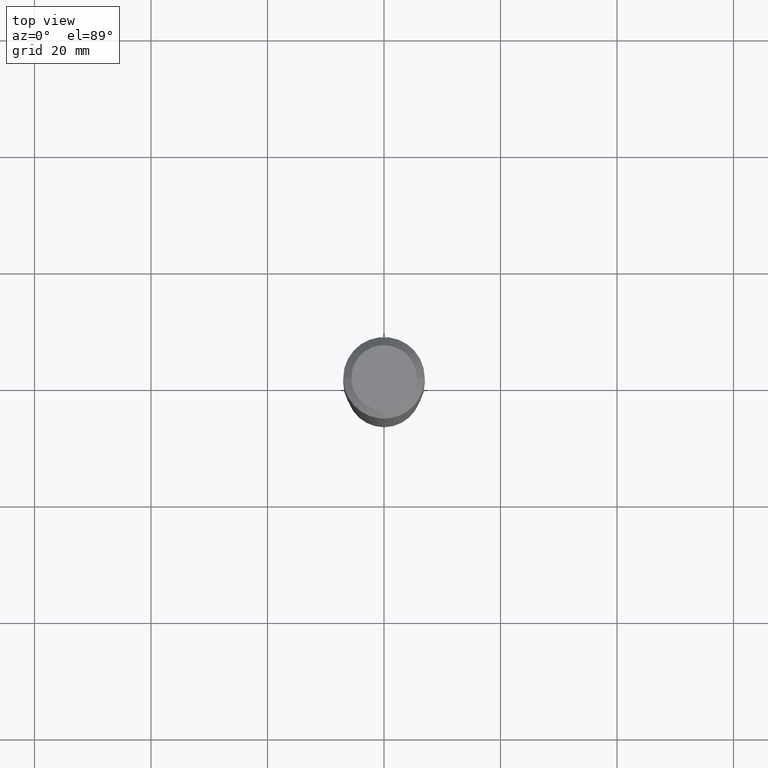
[diagram: clean part render]
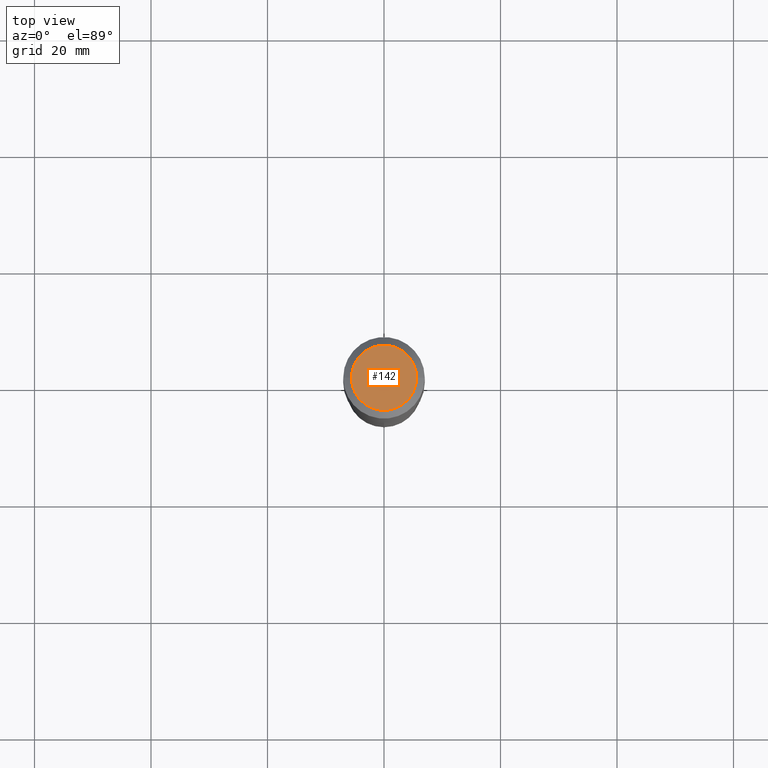
[diagram: same view with one face highlighted and labeled with its STEP entity id]
A machine part, top view. The second image highlights one B-rep face of the part: STEP entity #142.
In plain terms, the highlighted planar face has unit normal (0, -0, -1).
Its self-contained STEP definition (entity closure, byte-faithful):
#26 = CARTESIAN_POINT ( 'NONE',  ( -9.439721640706190018E-47, 1.347742071746724849E-32, 3.860086710912454339E-18 ) ) ;
#35 = VERTEX_POINT ( 'NONE', #57 ) ;
#49 = AXIS2_PLACEMENT_3D ( 'NONE', #79, #414, #416 ) ;
#57 = CARTESIAN_POINT ( 'NONE',  ( 0.2204800000000000093, -1.797903149065768707E-15, 3.860086710924123164E-18 ) ) ;
#64 = AXIS2_PLACEMENT_3D ( 'NONE', #138, #220, #475 ) ;
#66 = PLANE ( 'NONE',  #64 ) ;
#79 = CARTESIAN_POINT ( 'NONE',  ( -9.439721640706190018E-47, 1.347742071746724849E-32, 3.860086710912454339E-18 ) ) ;
#138 = CARTESIAN_POINT ( 'NONE',  ( -4.719860820353095009E-47, 6.738710358733624243E-33, 1.930043355456227170E-18 ) ) ;
#141 = EDGE_LOOP ( 'NONE', ( #286, #454 ) ) ;
#142 = ADVANCED_FACE ( 'NONE', ( #446 ), #66, .F. ) ;
#152 = AXIS2_PLACEMENT_3D ( 'NONE', #26, #177, #293 ) ;
#177 = DIRECTION ( 'NONE',  ( -2.445468806185136597E-29, 3.491481338843145583E-15, 1.000000000000000000 ) ) ;
#178 = EDGE_CURVE ( 'NONE', #249, #35, #409, .T. ) ;
#220 = DIRECTION ( 'NONE',  ( 2.438088387897960049E-29, -3.491481338843145188E-15, -1.000000000000000000 ) ) ;
#249 = VERTEX_POINT ( 'NONE', #399 ) ;
#259 = EDGE_CURVE ( 'NONE', #35, #249, #263, .T. ) ;
#263 = CIRCLE ( 'NONE', #49, 0.2204800000000000093 ) ;
#286 = ORIENTED_EDGE ( 'NONE', *, *, #178, .T. ) ;
#293 = DIRECTION ( 'NONE',  ( 1.000000000000000000, -6.982962677686266711E-15, 4.876132675269083677E-29 ) ) ;
#399 = CARTESIAN_POINT ( 'NONE',  ( -0.2204800000000000093, 1.635828836874783961E-15, 3.860086710901350968E-18 ) ) ;
#409 = CIRCLE ( 'NONE', #152, 0.2204800000000000093 ) ;
#414 = DIRECTION ( 'NONE',  ( -2.445468806185136597E-29, 3.491481338843145583E-15, 1.000000000000000000 ) ) ;
#416 = DIRECTION ( 'NONE',  ( 1.000000000000000000, -6.982962677686266711E-15, 4.876132675269083677E-29 ) ) ;
#446 = FACE_OUTER_BOUND ( 'NONE', #141, .T. ) ;
#454 = ORIENTED_EDGE ( 'NONE', *, *, #259, .T. ) ;
#475 = DIRECTION ( 'NONE',  ( -1.000000000000000000, 6.982962677686265922E-15, -4.876176775795935793E-29 ) ) ;